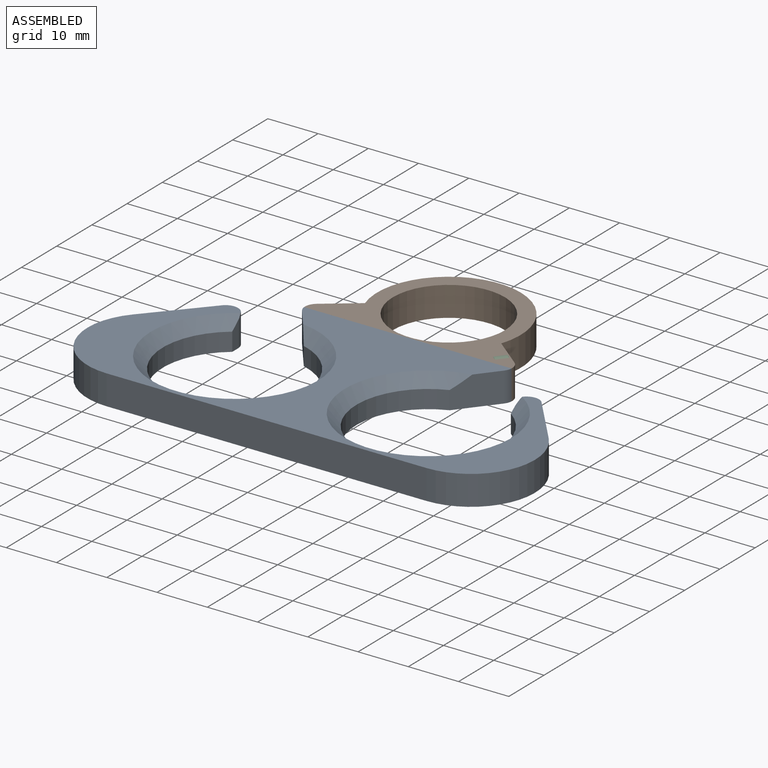
[diagram: assembled view]
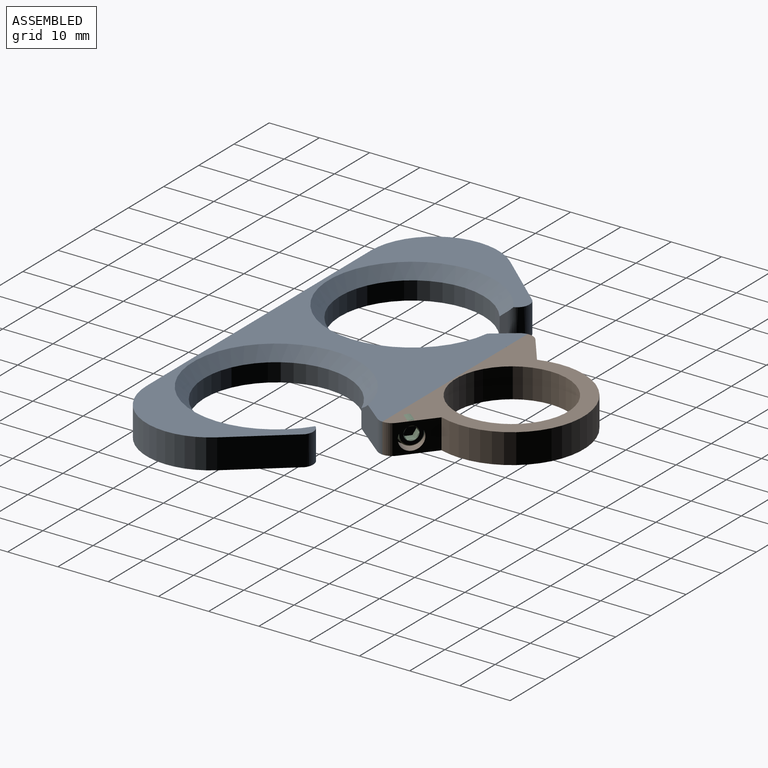
[diagram: assembled view, second angle]
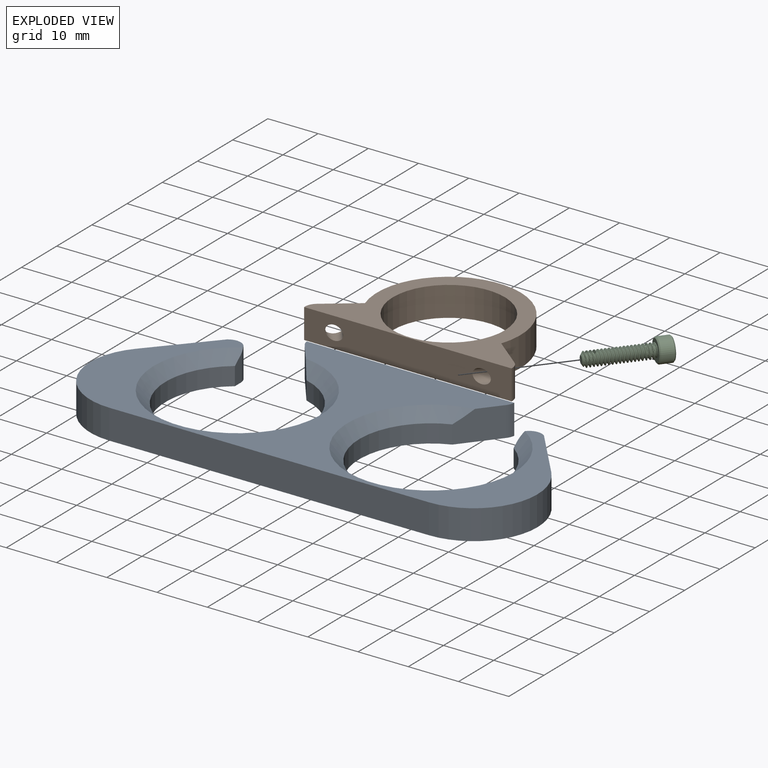
[diagram: exploded view]
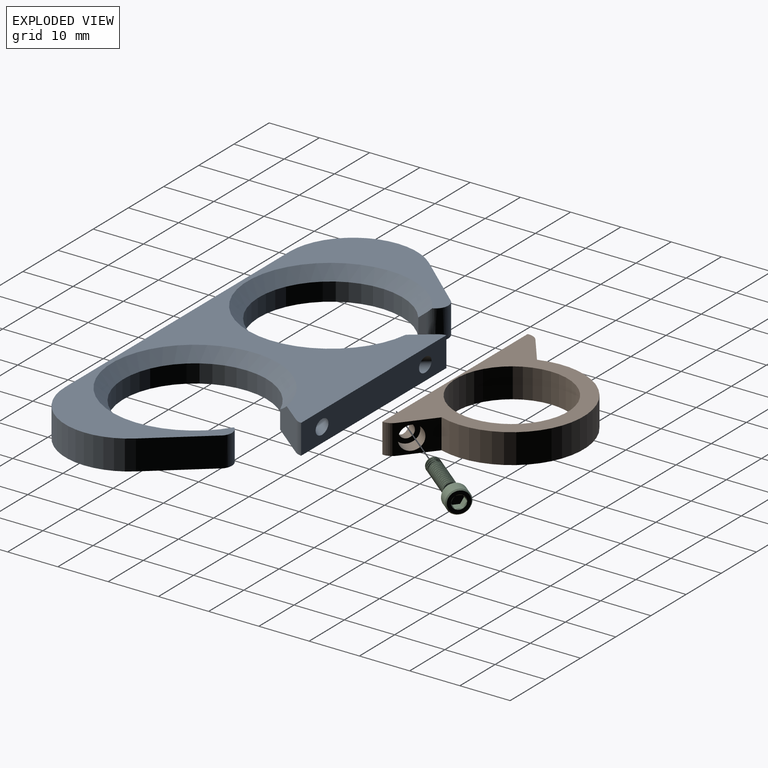
[diagram: exploded view, second angle]
ASSEMBLY  parts=3 mates=6
PART A: 26 faces, bbox 89.5x41.7x6.4 mm
  f0: cone r=14.29mm half-angle=45deg, axis (0,0,1), area 271.5mm2, adj f12,f13,f14,f15,f20
  f1: cone r=14.29mm half-angle=45deg, axis (0,0,1), area 273.5mm2, adj f2,f3,f4,f16,f20
  f2: cylinder r=14.29mm len=28.58mm, axis (0,0,-1), area 277.4mm2, adj f1,f3,f16,f19
  f3: plane 5.04x1.7mm, normal (1,0,0), area 7.1mm2, adj f1,f2,f4,f19
  f4: cylinder r=2.54mm len=5.92mm, axis (0,0,1), area 32.8mm2, adj f1,f3,f5,f19,f20
  f5: plane 5.92x0.11mm, normal (-0.6,0.8,0), area 0.8mm2, adj f4,f6,f19,f20
  f6: plane 11.46x10.08mm, normal (-0.75,0.66,0), area 90.3mm2, adj f5,f7,f19,f20
  f7: cylinder r=12.7mm len=21.09mm, axis (0,0,-1), area 172.3mm2, adj f6,f8,f19,f20
  f8: plane 63.62x5.92mm, normal (0,-1,0), area 376.5mm2, adj f7,f9,f19,f20
  f9: cylinder r=12.7mm len=20.83mm, axis (0,0,-1), area 170.3mm2, adj f8,f10,f19,f20
  f10: plane 11x9.17mm, normal (0.77,0.64,0), area 84.8mm2, adj f9,f11,f19,f20
  f11: plane 5.92x0.01mm, normal (0.62,0.78,0), area 0.1mm2, adj f10,f12,f19,f20
  f12: cylinder r=2.54mm len=5.92mm, axis (0,0,-1), area 32.3mm2, adj f0,f11,f13,f19,f20
  f13: plane 4.26x0.76mm, normal (-1,0,0), area 3mm2, adj f0,f12,f14,f19
  f14: cylinder r=14.29mm len=28.58mm, axis (0,0,-1), area 275mm2, adj f0,f13,f15,f19
  f15: plane 7.52x6.25mm, normal (0.78,-0.62,0), area 49.9mm2, adj f0,f14,f17,f19,f20
  f16: plane 7.24x6.18mm, normal (-0.8,-0.6,0), area 47.6mm2, adj f1,f2,f18,f19,f20
  f17: cylinder r=2.54mm len=5.92mm, axis (0,0,1), area 9.1mm2, adj f15,f19,f20,f21
  f18: cylinder r=2.54mm len=5.92mm, axis (0,0,1), area 8.4mm2, adj f16,f19,f20,f21
  f19: plane 89.02x39.42mm, normal (0,0,-1), area 1560.8mm2, adj f2,f3,f4,f5,f6,f7,f8,f9
  f20: plane 89.02x39.42mm, normal (0,0,1), area 1174.7mm2, adj f0,f1,f4,f5,f6,f7,f8,f9
  f21: plane 41.76x6.4mm, normal (0,1,0), area 228.2mm2, adj f17,f18,f19,f20,f23,f25
  f22: cone r=0mm half-angle=59deg, axis (0.62,0.78,0), area 7.4mm2, adj f23
  f23: cylinder r=1.42mm len=8.83mm, axis (0.62,0.78,0), area 70.5mm2, adj f21,f22
  f24: cone r=0mm half-angle=59deg, axis (-0.6,0.8,0), area 7.4mm2, adj f25
  f25: cylinder r=1.42mm len=8.89mm, axis (-0.6,0.8,0), area 70.7mm2, adj f21,f24
PART B: 15 faces, bbox 41.8x28x6.4 mm
  f0: plane 41.3x25.72mm, normal (0,0,1), area 304.3mm2, adj f4,f5,f6,f7,f8,f9,f14
  f1: plane 41.3x25.72mm, normal (0,0,-1), area 304.3mm2, adj f4,f5,f6,f7,f8,f9,f14
  f2: cylinder r=1.42mm len=4.07mm, axis (-0.6,0.8,0), area 16.7mm2, adj f10,f14
  f3: cylinder r=1.42mm len=4.14mm, axis (0.62,0.78,0), area 16.9mm2, adj f12,f14
  f4: cylinder r=2.54mm len=5.92mm, axis (0,0,1), area 14.5mm2, adj f0,f1,f6,f14
  f5: cylinder r=2.54mm len=5.92mm, axis (0,0,1), area 15.2mm2, adj f0,f1,f8,f14
  f6: plane 5.97x5.92mm, normal (0.62,0.78,0), area 27.9mm2, adj f0,f1,f4,f7,f13
  f7: cylinder r=14.29mm len=28.58mm, axis (0,0,-1), area 319.7mm2, adj f0,f1,f6,f8
  f8: plane 6.24x5.92mm, normal (-0.6,0.8,0), area 28.8mm2, adj f0,f1,f5,f7,f11
  f9: cylinder r=11.14mm len=22.28mm, axis (0,0,-1), area 414.2mm2, adj f0,f1
  f10: plane 4.7x3.76mm, normal (-0.6,0.8,0), area 11mm2, adj f2,f11
  f11: cylinder r=2.35mm len=5.51mm, axis (-0.6,0.8,0), area 43.1mm2, adj f8,f10
  f12: plane 4.7x3.67mm, normal (0.62,0.78,0), area 11mm2, adj f3,f13
  f13: cylinder r=2.35mm len=5.49mm, axis (0.62,0.78,0), area 43.1mm2, adj f6,f12
  f14: plane 41.76x6.4mm, normal (0,-1,0), area 228.2mm2, adj f0,f1,f2,f3,f4,f5
PART C: 104 faces, bbox 5.2x5.2x16.1 mm
  f0: plane 2.75x2.38mm, normal (0,0,-1), area 4.9mm2, adj f1,f99,f100,f101,f102,f103
  f1: plane 2.31x1.71mm, normal (-0.5,0.87,0), area 2.3mm2, adj f0,f2,f99,f103
  f2: cone r=0mm half-angle=45deg, axis (0,0,-1), area 0mm2, adj f1,f3
  f3: plane 4.63x4.63mm, normal (0,0,-1), area 7.8mm2, adj f2,f4,f94,f95,f96,f97,f98
  f4: cone r=0mm half-angle=45deg, axis (0,0,1), area 4.6mm2, adj f3,f5
  f5: cylinder r=2.32mm len=4.65mm, axis (0,0,1), area 34.8mm2, adj f4,f6
  f6: cone r=0mm half-angle=45deg, axis (0,0,-1), area 4.6mm2, adj f5,f7
  f7: plane 4.43x4.43mm, normal (0,0,1), area 9mm2, adj f6,f8,f91,f92,f93
  f8: cylinder r=1.42mm len=1.42mm, axis (0,0,1), area 0.1mm2, adj f7,f9,f91,f93
  f9: cylinder r=1.42mm len=2.85mm, axis (0,0,1), area 0.4mm2, adj f8,f10,f91,f93
  f10: cylinder r=1.42mm len=2.85mm, axis (0,0,1), area 0.4mm2, adj f9,f11,f91,f93
  f11: cylinder r=1.42mm len=2.85mm, axis (0,0,1), area 0.4mm2, adj f10,f12,f91,f93
  f12: cylinder r=1.42mm len=2.85mm, axis (0,0,1), area 0.4mm2, adj f11,f13,f91,f93
  f13: cylinder r=1.42mm len=2.85mm, axis (0,0,1), area 0.4mm2, adj f12,f14,f91,f93
  f14: cylinder r=1.42mm len=2.85mm, axis (0,0,1), area 0.4mm2, adj f13,f15,f91,f93
  f15: cylinder r=1.42mm len=2.85mm, axis (0,0,1), area 0.4mm2, adj f14,f16,f91,f93
  f16: cylinder r=1.42mm len=2.85mm, axis (0,0,1), area 0.4mm2, adj f15,f17,f91,f93
  f17: cylinder r=1.42mm len=2.85mm, axis (0,0,1), area 0.4mm2, adj f16,f18,f91,f93
  f18: cylinder r=1.42mm len=2.85mm, axis (0,0,1), area 0.4mm2, adj f17,f19,f91,f93
  f19: cylinder r=1.42mm len=2.85mm, axis (0,0,1), area 0.4mm2, adj f18,f20,f91,f93
  f20: cylinder r=1.42mm len=2.85mm, axis (0,0,1), area 0.4mm2, adj f19,f21,f91,f93
  f21: cylinder r=1.42mm len=2.85mm, axis (0,0,1), area 0.4mm2, adj f20,f22,f91,f93
  f22: cylinder r=1.42mm len=2.85mm, axis (0,0,1), area 0.4mm2, adj f21,f23,f91,f93
  f23: cylinder r=1.42mm len=2.85mm, axis (0,0,1), area 0.4mm2, adj f22,f24,f91,f93
  f24: cylinder r=1.42mm len=2.85mm, axis (0,0,1), area 0.4mm2, adj f23,f25,f91,f93
  f25: cylinder r=1.42mm len=2.85mm, axis (0,0,1), area 0.4mm2, adj f24,f26,f91,f93
  f26: cylinder r=1.42mm len=2.85mm, axis (0,0,1), area 0.4mm2, adj f25,f27,f91,f93
  f27: cylinder r=1.42mm len=2.85mm, axis (0,0,1), area 0.4mm2, adj f26,f28,f91,f93
  f28: cylinder r=1.42mm len=2.85mm, axis (0,0,1), area 0.4mm2, adj f27,f29,f91,f93
  f29: cylinder r=1.42mm len=2.85mm, axis (0,0,1), area 0.4mm2, adj f28,f30,f91,f93
  f30: cylinder r=1.42mm len=2.85mm, axis (0,0,1), area 0.4mm2, adj f29,f31,f91,f93
  f31: cylinder r=1.42mm len=2.85mm, axis (0,0,1), area 0.4mm2, adj f30,f32,f91,f93
  f32: cylinder r=1.42mm len=2.85mm, axis (0,0,1), area 0.4mm2, adj f31,f33,f91,f93
  f33: cylinder r=1.42mm len=2.85mm, axis (0,0,1), area 0.4mm2, adj f32,f34,f91,f93
  f34: cylinder r=1.42mm len=2.85mm, axis (0,0,1), area 0.4mm2, adj f33,f35,f91,f93
  f35: cylinder r=1.42mm len=2.85mm, axis (0,0,1), area 0.4mm2, adj f34,f36,f91,f93
  f36: cylinder r=1.42mm len=2.85mm, axis (0,0,1), area 0.4mm2, adj f35,f37,f91,f93
  f37: cylinder r=1.42mm len=2.85mm, axis (0,0,1), area 0.4mm2, adj f36,f38,f91,f93
  f38: cylinder r=1.42mm len=2.85mm, axis (0,0,1), area 0.4mm2, adj f37,f39,f91,f93
  f39: cylinder r=1.42mm len=2.85mm, axis (0,0,1), area 0.4mm2, adj f38,f40,f91,f93
  f40: cylinder r=1.42mm len=2.85mm, axis (0,0,1), area 0.4mm2, adj f39,f41,f91,f93
  f41: cylinder r=1.42mm len=2.85mm, axis (0,0,1), area 0.4mm2, adj f40,f42,f91,f93
  f42: cylinder r=1.42mm len=2.85mm, axis (0,0,1), area 0.4mm2, adj f41,f43,f91,f93
  f43: cylinder r=1.42mm len=2.85mm, axis (0,0,1), area 0.4mm2, adj f42,f44,f91,f93
  f44: cylinder r=1.42mm len=2.85mm, axis (0,0,1), area 0.4mm2, adj f43,f45,f91,f93
  f45: cylinder r=1.42mm len=2.85mm, axis (0,0,1), area 0.4mm2, adj f44,f46,f91,f93
  f46: cylinder r=1.42mm len=2.85mm, axis (0,0,1), area 0.4mm2, adj f45,f47,f91,f93
  f47: cylinder r=1.42mm len=1.1mm, axis (0,0,1), area 0.1mm2, adj f46,f48,f91,f93
  f48: cone r=0mm half-angle=55deg, axis (0,0,-1), area 2.2mm2, adj f47,f49,f89,f90,f91,f93
  f49: cylinder r=1.01mm len=0.57mm, axis (0,0,-1), area 0mm2, adj f48,f50,f93
  f50: cylinder r=1.01mm len=2.02mm, axis (0,0,-1), area 0.3mm2, adj f49,f51,f89,f91,f93
  f51: cylinder r=1.01mm len=2.02mm, axis (0,0,-1), area 0.3mm2, adj f50,f52,f91,f93
  f52: cylinder r=1.01mm len=2.02mm, axis (0,0,-1), area 0.3mm2, adj f51,f53,f91,f93
  f53: cylinder r=1.01mm len=2.02mm, axis (0,0,-1), area 0.3mm2, adj f52,f54,f91,f93
  f54: cylinder r=1.01mm len=2.02mm, axis (0,0,-1), area 0.3mm2, adj f53,f55,f91,f93
  f55: cylinder r=1.01mm len=2.02mm, axis (0,0,-1), area 0.3mm2, adj f54,f56,f91,f93
  f56: cylinder r=1.01mm len=2.02mm, axis (0,0,-1), area 0.3mm2, adj f55,f57,f91,f93
  f57: cylinder r=1.01mm len=2.02mm, axis (0,0,-1), area 0.3mm2, adj f56,f58,f91,f93
  f58: cylinder r=1.01mm len=2.02mm, axis (0,0,-1), area 0.3mm2, adj f57,f59,f91,f93
  f59: cylinder r=1.01mm len=2.02mm, axis (0,0,-1), area 0.3mm2, adj f58,f60,f91,f93
  f60: cylinder r=1.01mm len=2.02mm, axis (0,0,-1), area 0.3mm2, adj f59,f61,f91,f93
  f61: cylinder r=1.01mm len=2.02mm, axis (0,0,-1), area 0.3mm2, adj f60,f62,f91,f93
  f62: cylinder r=1.01mm len=2.02mm, axis (0,0,-1), area 0.3mm2, adj f61,f63,f91,f93
  f63: cylinder r=1.01mm len=2.02mm, axis (0,0,-1), area 0.3mm2, adj f62,f64,f91,f93
  f64: cylinder r=1.01mm len=2.02mm, axis (0,0,-1), area 0.3mm2, adj f63,f65,f91,f93
  f65: cylinder r=1.01mm len=2.02mm, axis (0,0,-1), area 0.3mm2, adj f64,f66,f91,f93
  f66: cylinder r=1.01mm len=2.02mm, axis (0,0,-1), area 0.3mm2, adj f65,f67,f91,f93
  f67: cylinder r=1.01mm len=2.02mm, axis (0,0,-1), area 0.3mm2, adj f66,f68,f91,f93
  f68: cylinder r=1.01mm len=2.02mm, axis (0,0,-1), area 0.3mm2, adj f67,f69,f91,f93
  f69: cylinder r=1.01mm len=2.02mm, axis (0,0,-1), area 0.3mm2, adj f68,f70,f91,f93
  f70: cylinder r=1.01mm len=2.02mm, axis (0,0,-1), area 0.3mm2, adj f69,f71,f91,f93
  f71: cylinder r=1.01mm len=2.02mm, axis (0,0,-1), area 0.3mm2, adj f70,f72,f91,f93
  f72: cylinder r=1.01mm len=2.02mm, axis (0,0,-1), area 0.3mm2, adj f71,f73,f91,f93
  f73: cylinder r=1.01mm len=2.02mm, axis (0,0,-1), area 0.3mm2, adj f72,f74,f91,f93
  f74: cylinder r=1.01mm len=2.02mm, axis (0,0,-1), area 0.3mm2, adj f73,f75,f91,f93
  f75: cylinder r=1.01mm len=2.02mm, axis (0,0,-1), area 0.3mm2, adj f74,f76,f91,f93
  f76: cylinder r=1.01mm len=2.02mm, axis (0,0,-1), area 0.3mm2, adj f75,f77,f91,f93
  f77: cylinder r=1.01mm len=2.02mm, axis (0,0,-1), area 0.3mm2, adj f76,f78,f91,f93
  f78: cylinder r=1.01mm len=2.02mm, axis (0,0,-1), area 0.3mm2, adj f77,f79,f91,f93
  f79: cylinder r=1.01mm len=2.02mm, axis (0,0,-1), area 0.3mm2, adj f78,f80,f91,f93
  f80: cylinder r=1.01mm len=2.02mm, axis (0,0,-1), area 0.3mm2, adj f79,f81,f91,f93
  f81: cylinder r=1.01mm len=2.02mm, axis (0,0,-1), area 0.3mm2, adj f80,f82,f91,f93
  f82: cylinder r=1.01mm len=2.02mm, axis (0,0,-1), area 0.3mm2, adj f81,f83,f91,f93
  f83: cylinder r=1.01mm len=2.02mm, axis (0,0,-1), area 0.3mm2, adj f82,f84,f91,f93
  f84: cylinder r=1.01mm len=2.02mm, axis (0,0,-1), area 0.3mm2, adj f83,f85,f91,f93
  f85: cylinder r=1.01mm len=2.02mm, axis (0,0,-1), area 0.3mm2, adj f84,f86,f91,f93
  f86: cylinder r=1.01mm len=2.02mm, axis (0,0,-1), area 0.3mm2, adj f85,f87,f91,f93
  f87: cylinder r=1.01mm len=2.02mm, axis (0,0,-1), area 0.3mm2, adj f86,f88,f91,f93
  f88: cylinder r=1.01mm len=2.02mm, axis (0,0,-1), area 0.3mm2, adj f87,f91,f92,f93
  f89: cone r=0mm half-angle=55deg, axis (0,0,-1), area 1.3mm2, adj f48,f50,f90,f91
  f90: plane 1.51x1.51mm, normal (0,0,1), area 1.8mm2, adj f48,f89
  f91: bspline ~13x2.84mm, area 71.1mm2, adj f7,f8,f9,f10,f11,f12,f13,f14
  f92: cylinder r=1.01mm len=1.01mm, axis (0,0,-1), area 0.1mm2, adj f7,f88,f91,f93
  f93: bspline ~12.76x2.84mm, area 71mm2, adj f7,f8,f9,f10,f11,f12,f13,f14
  f94: cone r=0mm half-angle=45deg, axis (0,0,-1), area 0mm2, adj f3,f103
  f95: cone r=0mm half-angle=45deg, axis (0,0,-1), area 0.2mm2, adj f3,f102
  f96: cone r=0mm half-angle=45deg, axis (0,0,-1), area 0mm2, adj f3,f101
  f97: cone r=0mm half-angle=45deg, axis (0,0,-1), area 0mm2, adj f3,f100
  f98: cone r=0mm half-angle=45deg, axis (0,0,-1), area 0mm2, adj f3,f99
  f99: plane 2.31x1.9mm, normal (-1,0,0), area 2.3mm2, adj f0,f1,f98,f100
  f100: plane 2.31x1.71mm, normal (-0.5,-0.87,0), area 2.3mm2, adj f0,f97,f99,f101
  f101: plane 2.31x1.71mm, normal (0.5,-0.87,0), area 2.3mm2, adj f0,f96,f100,f102
  f102: plane 1.92x1.51mm, normal (1,0,0), area 2.3mm2, adj f0,f95,f101,f103
  f103: plane 2.31x1.71mm, normal (0.5,0.87,0), area 2.3mm2, adj f0,f1,f94,f102
PLACE A t=(6.66,11.99,-17.55)mm
PLACE B t=(6.66,11.99,-17.55)mm
PLACE C rot(axis=(0.67,0.32,-0.67),144.3deg) t=(14.43,-7.88,-13.87)mm
MATE cylindrical C.f90 <-> B.f3  axis (-0.62,-0.78,0) through (14.43,-7.88,-14.62)mm
MATE cylindrical A.f24 <-> B.f2  axis (-0.6,0.8,0) through (-8.84,1.46,-14.64)mm
MATE cylindrical A.f22 <-> B.f3  axis (0.62,0.78,0) through (21.94,1.49,-14.62)mm
MATE parallel B.f14 <-> A.f21  axis (0,-1,0) through (-8.16,0.56,-14.64)mm
MATE parallel B.f3 <-> C.f7  axis (0.62,0.78,0) through (22.37,2.04,-14.62)mm
MATE parallel B.f1 <-> A.f19  axis (0,0,-1) through (6.55,10.78,-17.55)mm
